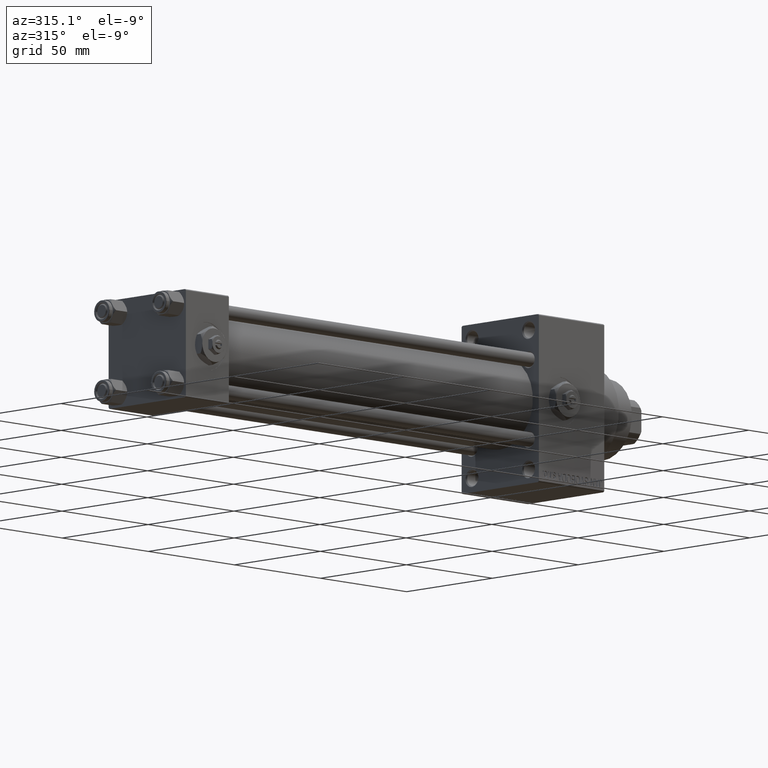
[diagram: clean part render]
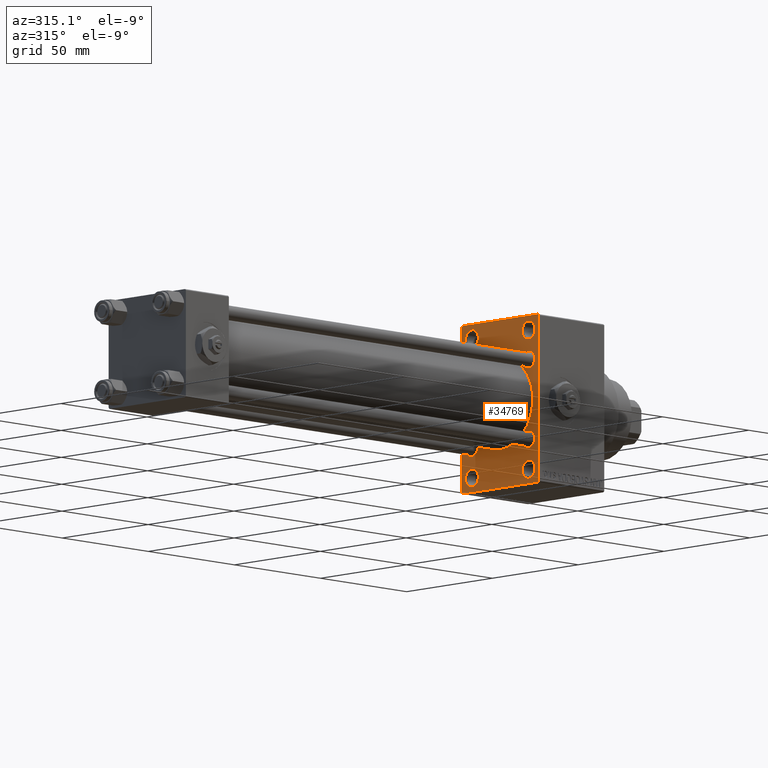
[diagram: same view with one face highlighted and labeled with its STEP entity id]
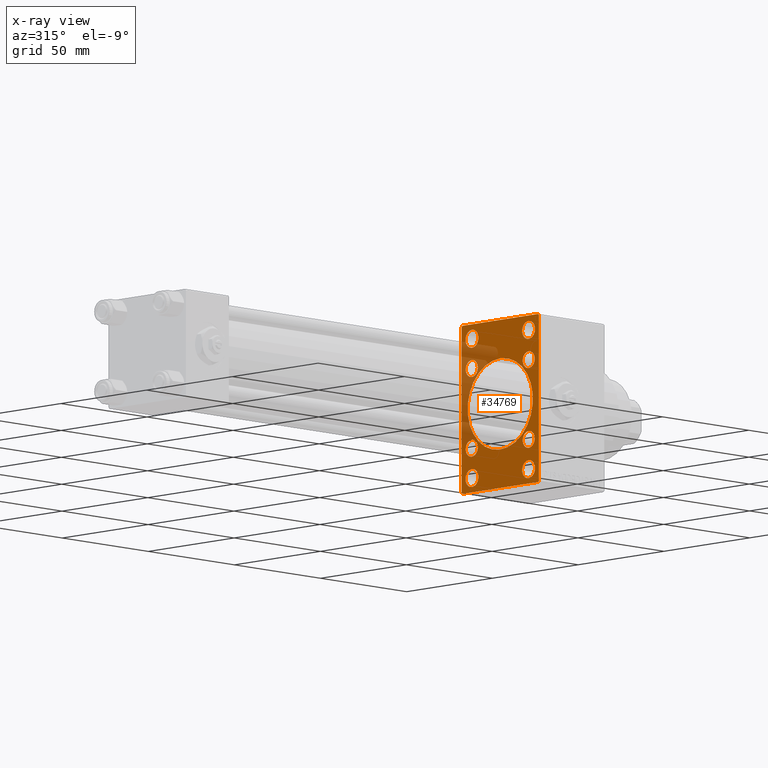
[diagram: x-ray of the same camera — body ghosted, the highlighted face saturated]
A machine part, auxiliary view. The second image highlights one B-rep face of the part: STEP entity #34769.
The next image is the same camera in x-ray: the body ghosted, the highlighted face saturated — about 19% of this face is hidden behind the body in this view.
In plain terms, the highlighted planar face has unit normal (-1, 0, 0).
Its self-contained STEP definition (entity closure, byte-faithful):
#159 = LINE ( 'NONE', #14786, #22051 ) ;
#429 = AXIS2_PLACEMENT_3D ( 'NONE', #3554, #47326, #10987 ) ;
#565 = CIRCLE ( 'NONE', #21950, 3.500000000000006661 ) ;
#784 = LINE ( 'NONE', #41496, #19714 ) ;
#797 = EDGE_LOOP ( 'NONE', ( #23138, #40626 ) ) ;
#938 = CIRCLE ( 'NONE', #14361, 19.00000000000000000 ) ;
#1086 = DIRECTION ( 'NONE',  ( 1.000000000000000000, 0.000000000000000000, 0.000000000000000000 ) ) ;
#1214 = CIRCLE ( 'NONE', #29716, 3.749999999999833467 ) ;
#1427 = EDGE_CURVE ( 'NONE', #13750, #18545, #22349, .T. ) ;
#1579 = CARTESIAN_POINT ( 'NONE',  ( 205.0000000000000000, -16.59999999999999076, 16.60000000000000853 ) ) ;
#1784 = CARTESIAN_POINT ( 'NONE',  ( 205.0000000000000000, 22.00000000000002132, 35.00000000000000000 ) ) ;
#1928 = DIRECTION ( 'NONE',  ( -0.000000000000000000, -0.7071067811865474617, -0.7071067811865474617 ) ) ;
#2215 = CARTESIAN_POINT ( 'NONE',  ( 205.0000000000000000, -2.752562955852400657E-16, -19.00000000000000000 ) ) ;
#2349 = VERTEX_POINT ( 'NONE', #26434 ) ;
#2484 = EDGE_CURVE ( 'NONE', #16681, #44321, #8884, .T. ) ;
#2547 = AXIS2_PLACEMENT_3D ( 'NONE', #37593, #3587, #33863 ) ;
#2557 = CARTESIAN_POINT ( 'NONE',  ( 205.0000000000000000, -2.602085213965210642E-15, 0.000000000000000000 ) ) ;
#2637 = CARTESIAN_POINT ( 'NONE',  ( 205.0000000000000000, -16.59999999999999076, 20.10000000000001208 ) ) ;
#2808 = DIRECTION ( 'NONE',  ( 1.000000000000000000, 0.000000000000000000, 0.000000000000000000 ) ) ;
#2886 = VERTEX_POINT ( 'NONE', #31986 ) ;
#3554 = CARTESIAN_POINT ( 'NONE',  ( 205.0000000000000000, -16.59999999999999076, -16.60000000000000853 ) ) ;
#3587 = DIRECTION ( 'NONE',  ( 1.000000000000000000, 0.000000000000000000, 0.000000000000000000 ) ) ;
#3703 = DIRECTION ( 'NONE',  ( 0.000000000000000000, -1.000000000000000000, 0.000000000000000000 ) ) ;
#3889 = EDGE_CURVE ( 'NONE', #2349, #29876, #21604, .T. ) ;
#3954 = CARTESIAN_POINT ( 'NONE',  ( 205.0000000000000000, -22.50000000000000355, -34.50000000000002842 ) ) ;
#4013 = DIRECTION ( 'NONE',  ( 0.000000000000000000, -0.7071067811865474617, 0.7071067811865474617 ) ) ;
#4015 = DIRECTION ( 'NONE',  ( 1.000000000000000000, 0.000000000000000000, 0.000000000000000000 ) ) ;
#4115 = DIRECTION ( 'NONE',  ( 0.000000000000000000, 0.000000000000000000, -1.000000000000000000 ) ) ;
#4143 = CIRCLE ( 'NONE', #18411, 3.500000000000003109 ) ;
#4668 = ORIENTED_EDGE ( 'NONE', *, *, #32728, .T. ) ;
#4801 = CARTESIAN_POINT ( 'NONE',  ( 205.0000000000000000, 16.59999999999999787, 16.60000000000000497 ) ) ;
#4921 = VERTEX_POINT ( 'NONE', #19075 ) ;
#4934 = DIRECTION ( 'NONE',  ( 0.000000000000000000, 0.000000000000000000, 1.000000000000000000 ) ) ;
#5117 = EDGE_CURVE ( 'NONE', #11050, #44949, #20460, .T. ) ;
#5199 = EDGE_CURVE ( 'NONE', #38423, #4921, #159, .T. ) ;
#5529 = EDGE_LOOP ( 'NONE', ( #13482, #4668 ) ) ;
#5566 = EDGE_LOOP ( 'NONE', ( #28789, #39270 ) ) ;
#5828 = CARTESIAN_POINT ( 'NONE',  ( 205.0000000000000000, -16.50000000000000000, 29.00000000000000711 ) ) ;
#5958 = EDGE_CURVE ( 'NONE', #11629, #2886, #784, .T. ) ;
#6133 = ORIENTED_EDGE ( 'NONE', *, *, #12466, .T. ) ;
#6551 = AXIS2_PLACEMENT_3D ( 'NONE', #26321, #2808, #11419 ) ;
#6554 = DIRECTION ( 'NONE',  ( 0.000000000000000000, 0.000000000000000000, 1.000000000000000000 ) ) ;
#6755 = CIRCLE ( 'NONE', #429, 3.500000000000006661 ) ;
#6936 = DIRECTION ( 'NONE',  ( 1.000000000000000000, 0.000000000000000000, 0.000000000000000000 ) ) ;
#7600 = VERTEX_POINT ( 'NONE', #2637 ) ;
#7682 = CARTESIAN_POINT ( 'NONE',  ( 205.0000000000000000, 22.00000000000002132, -35.00000000000000000 ) ) ;
#8115 = CARTESIAN_POINT ( 'NONE',  ( 205.0000000000000000, 16.50000000000000000, -28.99999999999999289 ) ) ;
#8139 = ORIENTED_EDGE ( 'NONE', *, *, #35908, .T. ) ;
#8216 = FACE_OUTER_BOUND ( 'NONE', #44626, .T. ) ;
#8341 = DIRECTION ( 'NONE',  ( 1.000000000000000000, 0.000000000000000000, 0.000000000000000000 ) ) ;
#8637 = DIRECTION ( 'NONE',  ( 1.000000000000000000, 0.000000000000000000, 0.000000000000000000 ) ) ;
#8884 = CIRCLE ( 'NONE', #14421, 19.00000000000000000 ) ;
#9058 = AXIS2_PLACEMENT_3D ( 'NONE', #31420, #8341, #26967 ) ;
#9100 = VECTOR ( 'NONE', #26955, 1000.000000000000000 ) ;
#9708 = CIRCLE ( 'NONE', #32705, 3.500000000000003109 ) ;
#10277 = DIRECTION ( 'NONE',  ( 1.000000000000000000, 0.000000000000000000, 0.000000000000000000 ) ) ;
#10423 = ORIENTED_EDGE ( 'NONE', *, *, #46195, .T. ) ;
#10718 = DIRECTION ( 'NONE',  ( 1.000000000000000000, 0.000000000000000000, 0.000000000000000000 ) ) ;
#10987 = DIRECTION ( 'NONE',  ( 0.000000000000000000, 0.000000000000000000, 1.000000000000000000 ) ) ;
#11050 = VERTEX_POINT ( 'NONE', #35430 ) ;
#11419 = DIRECTION ( 'NONE',  ( 0.000000000000000000, 0.000000000000000000, 1.000000000000000000 ) ) ;
#11515 = AXIS2_PLACEMENT_3D ( 'NONE', #5828, #10277, #6554 ) ;
#11629 = VERTEX_POINT ( 'NONE', #22632 ) ;
#11665 = CARTESIAN_POINT ( 'NONE',  ( 205.0000000000000000, 16.59999999999999787, -20.10000000000000853 ) ) ;
#11799 = DIRECTION ( 'NONE',  ( 0.000000000000000000, 0.7071067811865474617, -0.7071067811865474617 ) ) ;
#11887 = VECTOR ( 'NONE', #3703, 1000.000000000000000 ) ;
#11951 = CARTESIAN_POINT ( 'NONE',  ( 205.0000000000000000, 16.59999999999999787, -16.60000000000000497 ) ) ;
#11954 = EDGE_CURVE ( 'NONE', #37127, #16117, #48872, .T. ) ;
#12048 = CARTESIAN_POINT ( 'NONE',  ( 205.0000000000000000, 22.49999999999999645, 35.00000000000000000 ) ) ;
#12118 = CARTESIAN_POINT ( 'NONE',  ( 205.0000000000000000, 16.59999999999999787, -16.60000000000000497 ) ) ;
#12187 = FACE_BOUND ( 'NONE', #5566, .T. ) ;
#12243 = VERTEX_POINT ( 'NONE', #21990 ) ;
#12430 = CARTESIAN_POINT ( 'NONE',  ( 205.0000000000000000, 0.000000000000000000, 0.000000000000000000 ) ) ;
#12458 = VERTEX_POINT ( 'NONE', #41597 ) ;
#12466 = EDGE_CURVE ( 'NONE', #43960, #11629, #34140, .T. ) ;
#12695 = ORIENTED_EDGE ( 'NONE', *, *, #33394, .T. ) ;
#12720 = ORIENTED_EDGE ( 'NONE', *, *, #29148, .T. ) ;
#13122 = ORIENTED_EDGE ( 'NONE', *, *, #14171, .T. ) ;
#13351 = EDGE_CURVE ( 'NONE', #38423, #35290, #34398, .T. ) ;
#13482 = ORIENTED_EDGE ( 'NONE', *, *, #32904, .T. ) ;
#13528 = DIRECTION ( 'NONE',  ( 1.000000000000000000, 0.000000000000000000, 0.000000000000000000 ) ) ;
#13750 = VERTEX_POINT ( 'NONE', #41546 ) ;
#13889 = CARTESIAN_POINT ( 'NONE',  ( 205.0000000000000000, -22.00000000000001776, -35.00000000000000000 ) ) ;
#14064 = AXIS2_PLACEMENT_3D ( 'NONE', #12118, #8637, #42894 ) ;
#14171 = EDGE_CURVE ( 'NONE', #2886, #37127, #38929, .T. ) ;
#14361 = AXIS2_PLACEMENT_3D ( 'NONE', #47369, #32464, #20806 ) ;
#14421 = AXIS2_PLACEMENT_3D ( 'NONE', #2557, #39562, #25387 ) ;
#14422 = LINE ( 'NONE', #34053, #32025 ) ;
#14607 = CARTESIAN_POINT ( 'NONE',  ( 205.0000000000000000, -16.59999999999999076, 13.10000000000000142 ) ) ;
#14786 = CARTESIAN_POINT ( 'NONE',  ( 205.0000000000000000, -28.50000000000001776, 28.50000000000001776 ) ) ;
#14998 = CARTESIAN_POINT ( 'NONE',  ( 205.0000000000000000, -16.50000000000000000, -32.74999999999989342 ) ) ;
#15892 = FACE_BOUND ( 'NONE', #28660, .T. ) ;
#16117 = VERTEX_POINT ( 'NONE', #13889 ) ;
#16176 = EDGE_LOOP ( 'NONE', ( #12695, #12720 ) ) ;
#16264 = CARTESIAN_POINT ( 'NONE',  ( 205.0000000000000000, 16.50000000000000000, 25.25000000000011724 ) ) ;
#16416 = EDGE_LOOP ( 'NONE', ( #25130, #10423 ) ) ;
#16428 = EDGE_CURVE ( 'NONE', #44321, #16681, #938, .T. ) ;
#16485 = CARTESIAN_POINT ( 'NONE',  ( 205.0000000000000000, -16.59999999999999076, -20.10000000000001208 ) ) ;
#16681 = VERTEX_POINT ( 'NONE', #44255 ) ;
#16726 = AXIS2_PLACEMENT_3D ( 'NONE', #20258, #23252, #20008 ) ;
#16916 = CARTESIAN_POINT ( 'NONE',  ( 205.0000000000000000, 16.50000000000000000, 32.74999999999989342 ) ) ;
#16926 = DIRECTION ( 'NONE',  ( 0.000000000000000000, 0.000000000000000000, 1.000000000000000000 ) ) ;
#17294 = AXIS2_PLACEMENT_3D ( 'NONE', #20783, #39902, #40388 ) ;
#17481 = EDGE_CURVE ( 'NONE', #29876, #2349, #21584, .T. ) ;
#17631 = CIRCLE ( 'NONE', #23992, 3.749999999999892530 ) ;
#17634 = CIRCLE ( 'NONE', #6551, 3.749999999999895639 ) ;
#17867 = VERTEX_POINT ( 'NONE', #14998 ) ;
#18023 = EDGE_CURVE ( 'NONE', #17867, #30725, #17634, .T. ) ;
#18411 = AXIS2_PLACEMENT_3D ( 'NONE', #23804, #10718, #4934 ) ;
#18541 = ORIENTED_EDGE ( 'NONE', *, *, #27085, .F. ) ;
#18545 = VERTEX_POINT ( 'NONE', #11665 ) ;
#18669 = CIRCLE ( 'NONE', #38526, 3.749999999999892530 ) ;
#18798 = ORIENTED_EDGE ( 'NONE', *, *, #5117, .T. ) ;
#19075 = CARTESIAN_POINT ( 'NONE',  ( 205.0000000000000000, -22.00000000000001776, 35.00000000000000000 ) ) ;
#19088 = CARTESIAN_POINT ( 'NONE',  ( 205.0000000000000000, 16.50000000000000000, -25.25000000000009948 ) ) ;
#19714 = VECTOR ( 'NONE', #34534, 1000.000000000000000 ) ;
#20008 = DIRECTION ( 'NONE',  ( 0.000000000000000000, 0.000000000000000000, 1.000000000000000000 ) ) ;
#20258 = CARTESIAN_POINT ( 'NONE',  ( 205.0000000000000000, 16.50000000000000000, -28.99999999999999289 ) ) ;
#20460 = CIRCLE ( 'NONE', #17294, 3.500000000000006661 ) ;
#20783 = CARTESIAN_POINT ( 'NONE',  ( 205.0000000000000000, -16.59999999999999076, -16.60000000000000853 ) ) ;
#20806 = DIRECTION ( 'NONE',  ( 0.000000000000000000, 0.000000000000000000, -1.000000000000000000 ) ) ;
#21163 = EDGE_LOOP ( 'NONE', ( #26587, #29510 ) ) ;
#21584 = CIRCLE ( 'NONE', #22366, 3.749999999999895639 ) ;
#21604 = CIRCLE ( 'NONE', #16726, 3.749999999999895639 ) ;
#21950 = AXIS2_PLACEMENT_3D ( 'NONE', #4801, #1086, #16926 ) ;
#21990 = CARTESIAN_POINT ( 'NONE',  ( 205.0000000000000000, -16.50000000000000000, 32.74999999999984368 ) ) ;
#22051 = VECTOR ( 'NONE', #22501, 1000.000000000000114 ) ;
#22349 = CIRCLE ( 'NONE', #25498, 3.500000000000006661 ) ;
#22366 = AXIS2_PLACEMENT_3D ( 'NONE', #8115, #30707, #23263 ) ;
#22501 = DIRECTION ( 'NONE',  ( -0.000000000000000000, 0.7071067811865474617, 0.7071067811865474617 ) ) ;
#22569 = CARTESIAN_POINT ( 'NONE',  ( 205.0000000000000000, 22.49999999999999645, -35.00000000000000000 ) ) ;
#22632 = CARTESIAN_POINT ( 'NONE',  ( 205.0000000000000000, 22.49999999999999645, 34.50000000000002842 ) ) ;
#23138 = ORIENTED_EDGE ( 'NONE', *, *, #17481, .T. ) ;
#23252 = DIRECTION ( 'NONE',  ( 1.000000000000000000, 0.000000000000000000, 0.000000000000000000 ) ) ;
#23263 = DIRECTION ( 'NONE',  ( 0.000000000000000000, 0.000000000000000000, 1.000000000000000000 ) ) ;
#23366 = FACE_BOUND ( 'NONE', #16176, .T. ) ;
#23804 = CARTESIAN_POINT ( 'NONE',  ( 205.0000000000000000, -16.59999999999999076, 16.60000000000000853 ) ) ;
#23992 = AXIS2_PLACEMENT_3D ( 'NONE', #32399, #13528, #42612 ) ;
#25130 = ORIENTED_EDGE ( 'NONE', *, *, #39815, .T. ) ;
#25387 = DIRECTION ( 'NONE',  ( 0.000000000000000000, 0.000000000000000000, -1.000000000000000000 ) ) ;
#25424 = DIRECTION ( 'NONE',  ( 0.000000000000000000, 0.000000000000000000, 1.000000000000000000 ) ) ;
#25498 = AXIS2_PLACEMENT_3D ( 'NONE', #11951, #4015, #41996 ) ;
#25800 = CIRCLE ( 'NONE', #11515, 3.749999999999833467 ) ;
#25888 = ORIENTED_EDGE ( 'NONE', *, *, #11954, .T. ) ;
#26321 = CARTESIAN_POINT ( 'NONE',  ( 205.0000000000000000, -16.50000000000000000, -28.99999999999999289 ) ) ;
#26434 = CARTESIAN_POINT ( 'NONE',  ( 205.0000000000000000, 16.50000000000000000, -32.74999999999989342 ) ) ;
#26558 = CARTESIAN_POINT ( 'NONE',  ( 205.0000000000000000, -16.50000000000000000, -25.25000000000009948 ) ) ;
#26587 = ORIENTED_EDGE ( 'NONE', *, *, #41724, .T. ) ;
#26955 = DIRECTION ( 'NONE',  ( 0.000000000000000000, -1.000000000000000000, 0.000000000000000000 ) ) ;
#26967 = DIRECTION ( 'NONE',  ( 0.000000000000000000, 0.000000000000000000, 1.000000000000000000 ) ) ;
#27085 = EDGE_CURVE ( 'NONE', #43960, #4921, #43076, .T. ) ;
#27092 = DIRECTION ( 'NONE',  ( -0.000000000000000000, 0.000000000000000000, 1.000000000000000000 ) ) ;
#27344 = FACE_BOUND ( 'NONE', #38916, .T. ) ;
#27578 = FACE_BOUND ( 'NONE', #21163, .T. ) ;
#27891 = DIRECTION ( 'NONE',  ( 0.000000000000000000, 0.000000000000000000, 1.000000000000000000 ) ) ;
#27978 = EDGE_CURVE ( 'NONE', #39014, #12243, #25800, .T. ) ;
#28119 = CARTESIAN_POINT ( 'NONE',  ( 205.0000000000000000, -16.50000000000000000, 25.25000000000017408 ) ) ;
#28243 = CARTESIAN_POINT ( 'NONE',  ( 205.0000000000000000, 28.50000000000001421, -28.50000000000001421 ) ) ;
#28660 = EDGE_LOOP ( 'NONE', ( #41183, #41639 ) ) ;
#28789 = ORIENTED_EDGE ( 'NONE', *, *, #2484, .T. ) ;
#29085 = VERTEX_POINT ( 'NONE', #16264 ) ;
#29148 = EDGE_CURVE ( 'NONE', #29085, #47872, #18669, .T. ) ;
#29160 = DIRECTION ( 'NONE',  ( 1.000000000000000000, 0.000000000000000000, 0.000000000000000000 ) ) ;
#29311 = VECTOR ( 'NONE', #11799, 1000.000000000000114 ) ;
#29510 = ORIENTED_EDGE ( 'NONE', *, *, #27978, .T. ) ;
#29716 = AXIS2_PLACEMENT_3D ( 'NONE', #33252, #6936, #41197 ) ;
#29876 = VERTEX_POINT ( 'NONE', #19088 ) ;
#30707 = DIRECTION ( 'NONE',  ( 1.000000000000000000, 0.000000000000000000, 0.000000000000000000 ) ) ;
#30725 = VERTEX_POINT ( 'NONE', #26558 ) ;
#30739 = CARTESIAN_POINT ( 'NONE',  ( 205.0000000000000000, 16.59999999999999787, 13.09999999999999609 ) ) ;
#30808 = PLANE ( 'NONE',  #34368 ) ;
#31296 = FACE_BOUND ( 'NONE', #5529, .T. ) ;
#31420 = CARTESIAN_POINT ( 'NONE',  ( 205.0000000000000000, 16.59999999999999787, 16.60000000000000497 ) ) ;
#31446 = ORIENTED_EDGE ( 'NONE', *, *, #1427, .T. ) ;
#31524 = ORIENTED_EDGE ( 'NONE', *, *, #43666, .T. ) ;
#31844 = DIRECTION ( 'NONE',  ( 1.000000000000000000, 0.000000000000000000, 0.000000000000000000 ) ) ;
#31986 = CARTESIAN_POINT ( 'NONE',  ( 205.0000000000000000, 22.49999999999999645, -34.50000000000002842 ) ) ;
#32025 = VECTOR ( 'NONE', #4013, 1000.000000000000114 ) ;
#32399 = CARTESIAN_POINT ( 'NONE',  ( 205.0000000000000000, 16.50000000000000000, 29.00000000000000355 ) ) ;
#32464 = DIRECTION ( 'NONE',  ( 1.000000000000000000, 0.000000000000000000, 0.000000000000000000 ) ) ;
#32548 = EDGE_CURVE ( 'NONE', #30725, #17867, #45367, .T. ) ;
#32705 = AXIS2_PLACEMENT_3D ( 'NONE', #1579, #31844, #27891 ) ;
#32728 = EDGE_CURVE ( 'NONE', #39440, #7600, #9708, .T. ) ;
#32904 = EDGE_CURVE ( 'NONE', #7600, #39440, #4143, .T. ) ;
#33252 = CARTESIAN_POINT ( 'NONE',  ( 205.0000000000000000, -16.50000000000000000, 29.00000000000000711 ) ) ;
#33394 = EDGE_CURVE ( 'NONE', #47872, #29085, #17631, .T. ) ;
#33863 = DIRECTION ( 'NONE',  ( 0.000000000000000000, 0.000000000000000000, 1.000000000000000000 ) ) ;
#33896 = CIRCLE ( 'NONE', #14064, 3.500000000000006661 ) ;
#34053 = CARTESIAN_POINT ( 'NONE',  ( 205.0000000000000000, -28.50000000000001421, -28.50000000000001421 ) ) ;
#34140 = LINE ( 'NONE', #41345, #29311 ) ;
#34288 = DIRECTION ( 'NONE',  ( -1.000000000000000000, 0.000000000000000000, -0.000000000000000000 ) ) ;
#34368 = AXIS2_PLACEMENT_3D ( 'NONE', #12430, #34288, #27092 ) ;
#34398 = LINE ( 'NONE', #38372, #45233 ) ;
#34534 = DIRECTION ( 'NONE',  ( 0.000000000000000000, 0.000000000000000000, -1.000000000000000000 ) ) ;
#34769 = ADVANCED_FACE ( 'NONE', ( #27578, #15892, #42722, #23366, #31296, #45715, #46200, #27344, #12187, #8216 ), #30808, .T. ) ;
#34842 = EDGE_LOOP ( 'NONE', ( #31446, #35805 ) ) ;
#35290 = VERTEX_POINT ( 'NONE', #3954 ) ;
#35430 = CARTESIAN_POINT ( 'NONE',  ( 205.0000000000000000, -16.59999999999999076, -13.10000000000000142 ) ) ;
#35805 = ORIENTED_EDGE ( 'NONE', *, *, #48443, .T. ) ;
#35908 = EDGE_CURVE ( 'NONE', #16117, #35290, #14422, .T. ) ;
#35979 = CARTESIAN_POINT ( 'NONE',  ( 205.0000000000000000, -22.50000000000000355, 34.50000000000002842 ) ) ;
#36516 = ORIENTED_EDGE ( 'NONE', *, *, #5199, .T. ) ;
#36750 = ORIENTED_EDGE ( 'NONE', *, *, #13351, .F. ) ;
#37127 = VERTEX_POINT ( 'NONE', #7682 ) ;
#37593 = CARTESIAN_POINT ( 'NONE',  ( 205.0000000000000000, -16.50000000000000000, -28.99999999999999289 ) ) ;
#38372 = CARTESIAN_POINT ( 'NONE',  ( 205.0000000000000000, -22.50000000000000355, 35.00000000000000000 ) ) ;
#38423 = VERTEX_POINT ( 'NONE', #35979 ) ;
#38526 = AXIS2_PLACEMENT_3D ( 'NONE', #44786, #29160, #25424 ) ;
#38916 = EDGE_LOOP ( 'NONE', ( #18798, #31524 ) ) ;
#38929 = LINE ( 'NONE', #28243, #41286 ) ;
#39014 = VERTEX_POINT ( 'NONE', #28119 ) ;
#39270 = ORIENTED_EDGE ( 'NONE', *, *, #16428, .T. ) ;
#39440 = VERTEX_POINT ( 'NONE', #14607 ) ;
#39562 = DIRECTION ( 'NONE',  ( 1.000000000000000000, 0.000000000000000000, 0.000000000000000000 ) ) ;
#39815 = EDGE_CURVE ( 'NONE', #12458, #48414, #40076, .T. ) ;
#39902 = DIRECTION ( 'NONE',  ( 1.000000000000000000, 0.000000000000000000, 0.000000000000000000 ) ) ;
#40076 = CIRCLE ( 'NONE', #9058, 3.500000000000006661 ) ;
#40388 = DIRECTION ( 'NONE',  ( 0.000000000000000000, 0.000000000000000000, 1.000000000000000000 ) ) ;
#40626 = ORIENTED_EDGE ( 'NONE', *, *, #3889, .T. ) ;
#41183 = ORIENTED_EDGE ( 'NONE', *, *, #32548, .T. ) ;
#41197 = DIRECTION ( 'NONE',  ( 0.000000000000000000, 0.000000000000000000, 1.000000000000000000 ) ) ;
#41286 = VECTOR ( 'NONE', #1928, 1000.000000000000114 ) ;
#41345 = CARTESIAN_POINT ( 'NONE',  ( 205.0000000000000000, 28.50000000000000711, 28.50000000000000711 ) ) ;
#41496 = CARTESIAN_POINT ( 'NONE',  ( 205.0000000000000000, 22.49999999999999645, 35.00000000000000000 ) ) ;
#41546 = CARTESIAN_POINT ( 'NONE',  ( 205.0000000000000000, 16.59999999999999787, -13.09999999999999787 ) ) ;
#41597 = CARTESIAN_POINT ( 'NONE',  ( 205.0000000000000000, 16.59999999999999787, 20.10000000000001208 ) ) ;
#41639 = ORIENTED_EDGE ( 'NONE', *, *, #18023, .T. ) ;
#41724 = EDGE_CURVE ( 'NONE', #12243, #39014, #1214, .T. ) ;
#41996 = DIRECTION ( 'NONE',  ( 0.000000000000000000, 0.000000000000000000, 1.000000000000000000 ) ) ;
#42612 = DIRECTION ( 'NONE',  ( 0.000000000000000000, 0.000000000000000000, 1.000000000000000000 ) ) ;
#42722 = FACE_BOUND ( 'NONE', #797, .T. ) ;
#42894 = DIRECTION ( 'NONE',  ( 0.000000000000000000, 0.000000000000000000, 1.000000000000000000 ) ) ;
#43076 = LINE ( 'NONE', #12048, #9100 ) ;
#43550 = ORIENTED_EDGE ( 'NONE', *, *, #5958, .T. ) ;
#43666 = EDGE_CURVE ( 'NONE', #44949, #11050, #6755, .T. ) ;
#43960 = VERTEX_POINT ( 'NONE', #1784 ) ;
#44255 = CARTESIAN_POINT ( 'NONE',  ( 205.0000000000000000, -2.602085213965210642E-15, 19.00000000000000000 ) ) ;
#44321 = VERTEX_POINT ( 'NONE', #2215 ) ;
#44626 = EDGE_LOOP ( 'NONE', ( #25888, #8139, #36750, #36516, #18541, #6133, #43550, #13122 ) ) ;
#44786 = CARTESIAN_POINT ( 'NONE',  ( 205.0000000000000000, 16.50000000000000000, 29.00000000000000355 ) ) ;
#44949 = VERTEX_POINT ( 'NONE', #16485 ) ;
#45233 = VECTOR ( 'NONE', #4115, 1000.000000000000000 ) ;
#45367 = CIRCLE ( 'NONE', #2547, 3.749999999999895639 ) ;
#45715 = FACE_BOUND ( 'NONE', #16416, .T. ) ;
#46195 = EDGE_CURVE ( 'NONE', #48414, #12458, #565, .T. ) ;
#46200 = FACE_BOUND ( 'NONE', #34842, .T. ) ;
#47326 = DIRECTION ( 'NONE',  ( 1.000000000000000000, 0.000000000000000000, 0.000000000000000000 ) ) ;
#47369 = CARTESIAN_POINT ( 'NONE',  ( 205.0000000000000000, -2.602085213965210642E-15, 0.000000000000000000 ) ) ;
#47872 = VERTEX_POINT ( 'NONE', #16916 ) ;
#48414 = VERTEX_POINT ( 'NONE', #30739 ) ;
#48443 = EDGE_CURVE ( 'NONE', #18545, #13750, #33896, .T. ) ;
#48872 = LINE ( 'NONE', #22569, #11887 ) ;